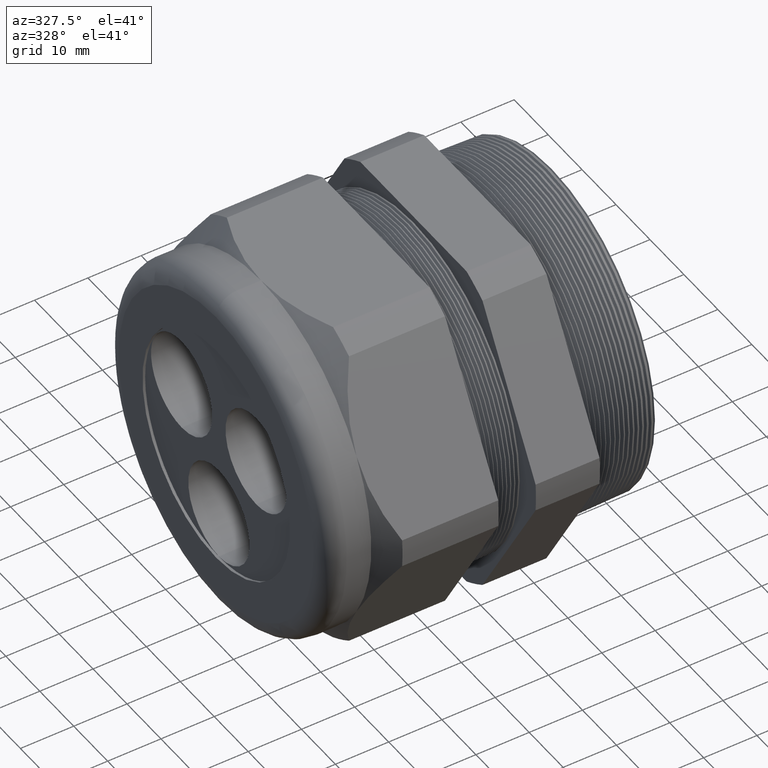
[diagram: clean part render]
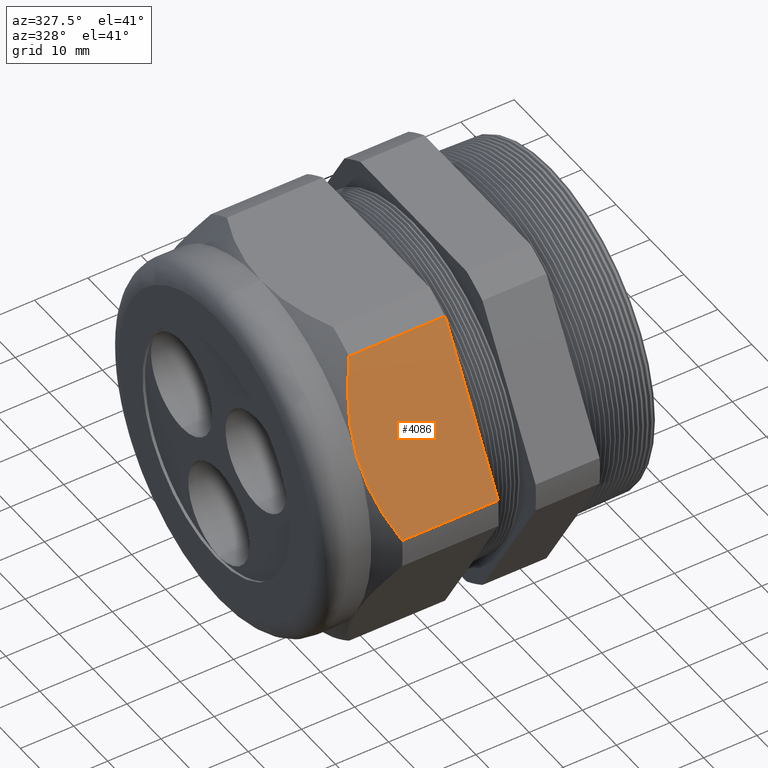
[diagram: same view with one face highlighted and labeled with its STEP entity id]
A machine part, auxiliary view. The second image highlights one B-rep face of the part: STEP entity #4086.
In plain terms, the highlighted planar face has unit normal (0, -0.866, 0.5).
Its self-contained STEP definition (entity closure, byte-faithful):
#1280 = DIRECTION ( 'NONE',  ( 0.0000000000000000000, -0.4999999999999994400, -0.8660254037844390400 ) ) ;
#1281 = DIRECTION ( 'NONE',  ( 0.0000000000000000000, -0.8660254037844390400, 0.4999999999999994400 ) ) ;
#1282 = CARTESIAN_POINT ( 'NONE',  ( 0.2400000000000001900, -1.416843767287496500, 0.1059546086707597900 ) ) ;
#1283 = AXIS2_PLACEMENT_3D ( 'NONE', #1282, #1281, #1280 ) ;
#1284 = PLANE ( 'NONE',  #1283 ) ;
#1285 = FACE_OUTER_BOUND ( 'NONE', #4082, .T. ) ;
#2009 = DIRECTION ( 'NONE',  ( -1.000000000000000000, 0.0000000000000000000, 0.0000000000000000000 ) ) ;
#2010 = VECTOR ( 'NONE', #2009, 39.37007874015748100 ) ;
#2011 = CARTESIAN_POINT ( 'NONE',  ( 0.2400000000000001900, -0.8001812664006662200, 1.174045391329239200 ) ) ;
#2012 = LINE ( 'NONE', #2011, #2010 ) ;
#2013 = CARTESIAN_POINT ( 'NONE',  ( -1.058802799999999400, -0.8001812664006662200, 1.174045391329239200 ) ) ;
#2014 = CARTESIAN_POINT ( 'NONE',  ( -1.768491999999999700, -0.8001812664006662200, 1.174045391329239200 ) ) ;
#2019 = CARTESIAN_POINT ( 'NONE',  ( -1.768492000000000200, -1.416843767287496500, 0.1059546086707598600 ) ) ;
#2026 = DIRECTION ( 'NONE',  ( -1.000000000000000000, 0.0000000000000000000, 0.0000000000000000000 ) ) ;
#2027 = VECTOR ( 'NONE', #2026, 39.37007874015748100 ) ;
#2028 = CARTESIAN_POINT ( 'NONE',  ( 0.2400000000000001900, -1.416843767287496500, 0.1059546086707598600 ) ) ;
#2029 = LINE ( 'NONE', #2028, #2027 ) ;
#2035 = CARTESIAN_POINT ( 'NONE',  ( -1.058802799999999400, -1.416843767287496500, 0.1059546086707598600 ) ) ;
#2036 = DIRECTION ( 'NONE',  ( 0.0000000000000000000, -0.4999999999999994400, -0.8660254037844389300 ) ) ;
#2037 = VECTOR ( 'NONE', #2036, 39.37007874015748100 ) ;
#2038 = CARTESIAN_POINT ( 'NONE',  ( -1.058802799999999400, -0.7985125168440820900, 1.176935750346350500 ) ) ;
#2044 = LINE ( 'NONE', #2038, #2037 ) ;
#2054 = CARTESIAN_POINT ( 'NONE',  ( -1.909291999999999500, -1.108512516844082100, 0.6399999999999994600 ) ) ;
#2055 = CARTESIAN_POINT ( 'NONE',  ( -1.909291999999999800, -1.095165949251063700, 0.6631169331777592200 ) ) ;
#2056 = CARTESIAN_POINT ( 'NONE',  ( -1.908447375922473800, -1.081697307527198100, 0.6864453049524358300 ) ) ;
#2057 = CARTESIAN_POINT ( 'NONE',  ( -1.905092703011699800, -1.054937557301919500, 0.7327945519404710500 ) ) ;
#2058 = CARTESIAN_POINT ( 'NONE',  ( -1.902593623238848300, -1.041660076878359500, 0.7557918226305783100 ) ) ;
#2059 = CARTESIAN_POINT ( 'NONE',  ( -1.892779944983450600, -1.002116279323628200, 0.8242836891195913800 ) ) ;
#2060 = CARTESIAN_POINT ( 'NONE',  ( -1.883148185439523800, -0.9761386958899313000, 0.8692781834846137200 ) ) ;
#2061 = CARTESIAN_POINT ( 'NONE',  ( -1.846263399014646900, -0.8992014914594097500, 1.002537330550590500 ) ) ;
#2062 = CARTESIAN_POINT ( 'NONE',  ( -1.811069874631296500, -0.8492313093245900100, 1.089088224871568300 ) ) ;
#2063 = CARTESIAN_POINT ( 'NONE',  ( -1.768491999999999700, -0.8001812664006662200, 1.174045391329239200 ) ) ;
#2067 = B_SPLINE_CURVE_WITH_KNOTS ( 'NONE', 3,
 ( #2063, #2062, #2061, #2060, #2059, #2058, #2057, #2056, #2055, #2054 ),
 .UNSPECIFIED., .F., .F.,
 ( 4, 2, 2, 2, 4 ),
 ( 2.483246117753155000E-007, 0.008038183629490620200, 0.01205715128193004900, 0.01406663510814977000, 0.01607611893436949200 ),
 .UNSPECIFIED. ) ;
#2068 = CARTESIAN_POINT ( 'NONE',  ( -1.768492000000000200, -1.416843767287496500, 0.1059546086707598600 ) ) ;
#2069 = CARTESIAN_POINT ( 'NONE',  ( -1.789807280376754800, -1.392288398414134100, 0.1484857551580196200 ) ) ;
#2070 = CARTESIAN_POINT ( 'NONE',  ( -1.809379497512202400, -1.367365115742174900, 0.1916541470372537500 ) ) ;
#2071 = CARTESIAN_POINT ( 'NONE',  ( -1.844076898263659500, -1.316757461105979400, 0.2793091761190435500 ) ) ;
#2072 = CARTESIAN_POINT ( 'NONE',  ( -1.859065044692607600, -1.291267087779649900, 0.3234597978241433600 ) ) ;
#2073 = CARTESIAN_POINT ( 'NONE',  ( -1.895822934946117300, -1.214147434025103500, 0.4570349563891384900 ) ) ;
#2074 = CARTESIAN_POINT ( 'NONE',  ( -1.909292000000000200, -1.161862181089928800, 0.5475956709594517200 ) ) ;
#2075 = CARTESIAN_POINT ( 'NONE',  ( -1.909291999999999500, -1.108512516844082100, 0.6399999999999994600 ) ) ;
#2076 = CARTESIAN_POINT ( 'NONE',  ( -1.909291999999999500, -1.108512516844082100, 0.6399999999999994600 ) ) ;
#2077 = B_SPLINE_CURVE_WITH_KNOTS ( 'NONE', 3,
 ( #2075, #2074, #2073, #2072, #2071, #2070, #2069, #2068 ),
 .UNSPECIFIED., .F., .F.,
 ( 4, 2, 2, 4 ),
 ( 0.01607611893436949200, 0.02410854275338655500, 0.02812475466289508800, 0.03214096657240362400 ),
 .UNSPECIFIED. ) ;
#4082 = EDGE_LOOP ( 'NONE', ( #4505, #4510, #4502, #4500, #4496 ) ) ;
#4086 = ADVANCED_FACE ( 'NONE', ( #1285 ), #1284, .T. ) ;
#4470 = VERTEX_POINT ( 'NONE', #2014 ) ;
#4471 = VERTEX_POINT ( 'NONE', #2013 ) ;
#4472 = EDGE_CURVE ( 'NONE', #4471, #4470, #2012, .T. ) ;
#4490 = EDGE_CURVE ( 'NONE', #4471, #4491, #2044, .T. ) ;
#4491 = VERTEX_POINT ( 'NONE', #2035 ) ;
#4494 = EDGE_CURVE ( 'NONE', #4491, #4501, #2029, .T. ) ;
#4496 = ORIENTED_EDGE ( 'NONE', *, *, #4490, .F. ) ;
#4500 = ORIENTED_EDGE ( 'NONE', *, *, #4494, .F. ) ;
#4501 = VERTEX_POINT ( 'NONE', #2019 ) ;
#4502 = ORIENTED_EDGE ( 'NONE', *, *, #4503, .T. ) ;
#4503 = EDGE_CURVE ( 'NONE', #4504, #4501, #2077, .T. ) ;
#4504 = VERTEX_POINT ( 'NONE', #2076 ) ;
#4505 = ORIENTED_EDGE ( 'NONE', *, *, #4472, .T. ) ;
#4506 = EDGE_CURVE ( 'NONE', #4470, #4504, #2067, .T. ) ;
#4510 = ORIENTED_EDGE ( 'NONE', *, *, #4506, .T. ) ;